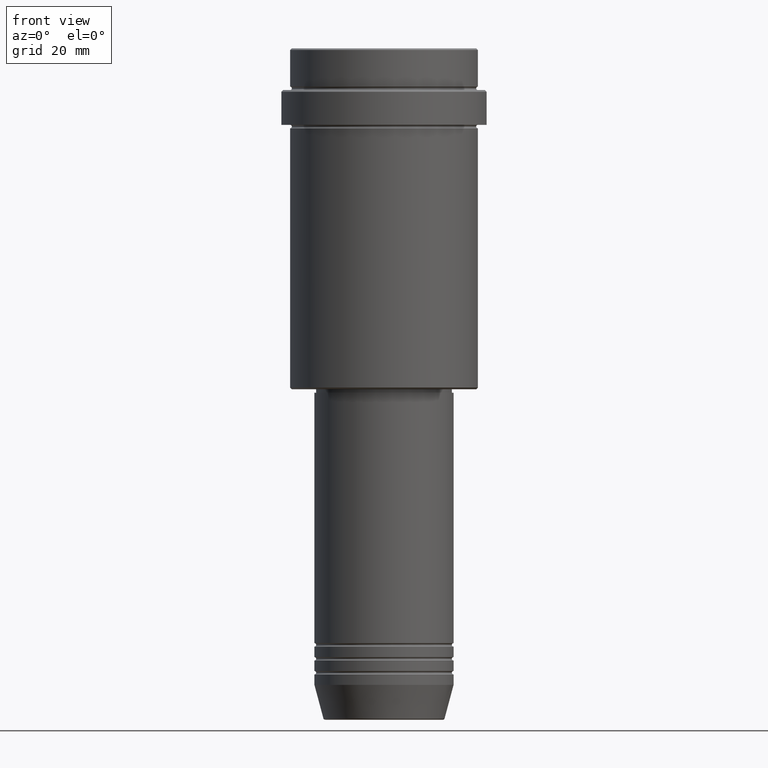
[diagram: clean part render]
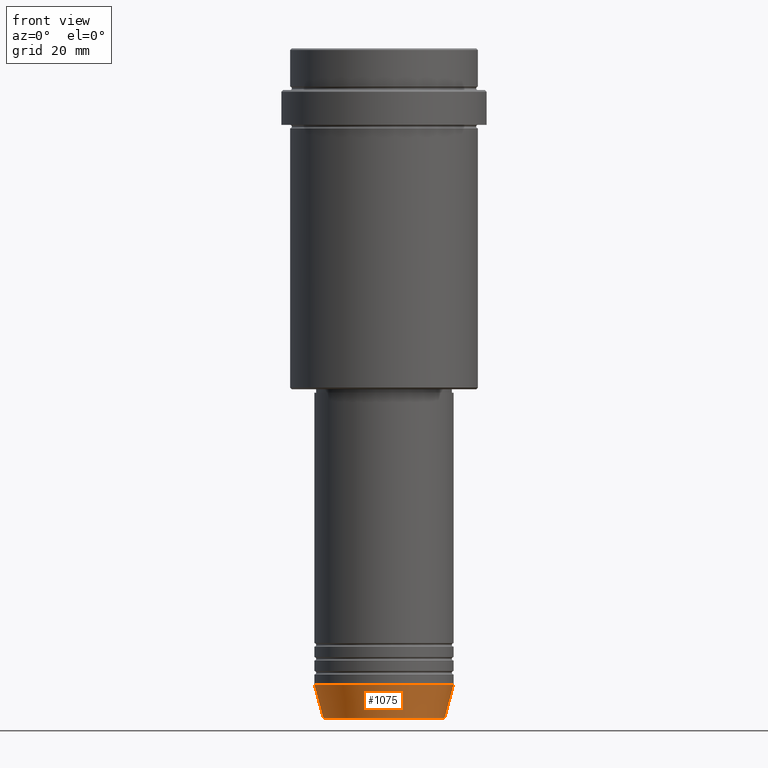
[diagram: same view with one face highlighted and labeled with its STEP entity id]
A machine part, front view. The second image highlights one B-rep face of the part: STEP entity #1075.
In plain terms, the highlighted conical surface has half-angle 15 deg.
Its self-contained STEP definition (entity closure, byte-faithful):
#86 = EDGE_CURVE ( 'NONE', #1271, #1262, #487, .T. ) ;
#92 = EDGE_CURVE ( 'NONE', #513, #1364, #540, .T. ) ;
#102 = DIRECTION ( 'NONE',  ( 1.000000000000000000, 0.000000000000000000, 0.000000000000000000 ) ) ;
#107 = DIRECTION ( 'NONE',  ( 1.000000000000000000, 0.000000000000000000, 0.000000000000000000 ) ) ;
#138 = LINE ( 'NONE', #1417, #659 ) ;
#184 = EDGE_LOOP ( 'NONE', ( #872, #594, #229, #1188 ) ) ;
#210 = AXIS2_PLACEMENT_3D ( 'NONE', #667, #215, #554 ) ;
#215 = DIRECTION ( 'NONE',  ( -0.000000000000000000, -0.000000000000000000, 1.000000000000000000 ) ) ;
#229 = ORIENTED_EDGE ( 'NONE', *, *, #1026, .T. ) ;
#293 = CARTESIAN_POINT ( 'NONE',  ( -20.00000000000000000, 2.449293598294706513E-15, -183.0000000000000000 ) ) ;
#354 = CONICAL_SURFACE ( 'NONE', #681, 20.00000000000000000, 0.2617993877991492413 ) ;
#375 = DIRECTION ( 'NONE',  ( 0.2588190451025205729, 0.000000000000000000, 0.9659258262890683122 ) ) ;
#462 = CARTESIAN_POINT ( 'NONE',  ( 0.000000000000000000, 0.000000000000000000, -183.0000000000000000 ) ) ;
#482 = FACE_OUTER_BOUND ( 'NONE', #184, .T. ) ;
#487 = CIRCLE ( 'NONE', #210, 17.41980749484381974 ) ;
#513 = VERTEX_POINT ( 'NONE', #1165 ) ;
#537 = DIRECTION ( 'NONE',  ( -0.000000000000000000, -0.000000000000000000, 1.000000000000000000 ) ) ;
#540 = CIRCLE ( 'NONE', #768, 20.00000000000000000 ) ;
#554 = DIRECTION ( 'NONE',  ( 1.000000000000000000, 0.000000000000000000, 0.000000000000000000 ) ) ;
#594 = ORIENTED_EDGE ( 'NONE', *, *, #86, .T. ) ;
#657 = LINE ( 'NONE', #293, #1201 ) ;
#659 = VECTOR ( 'NONE', #375, 1000.000000000000114 ) ;
#667 = CARTESIAN_POINT ( 'NONE',  ( 0.000000000000000000, 0.000000000000000000, -192.6294095225512422 ) ) ;
#681 = AXIS2_PLACEMENT_3D ( 'NONE', #462, #1308, #107 ) ;
#768 = AXIS2_PLACEMENT_3D ( 'NONE', #1082, #537, #102 ) ;
#846 = CARTESIAN_POINT ( 'NONE',  ( 17.41980749484381974, 0.000000000000000000, -192.6294095225512422 ) ) ;
#872 = ORIENTED_EDGE ( 'NONE', *, *, #880, .F. ) ;
#880 = EDGE_CURVE ( 'NONE', #1271, #513, #657, .T. ) ;
#1026 = EDGE_CURVE ( 'NONE', #1262, #1364, #138, .T. ) ;
#1075 = ADVANCED_FACE ( 'NONE', ( #482 ), #354, .T. ) ;
#1082 = CARTESIAN_POINT ( 'NONE',  ( 0.000000000000000000, 0.000000000000000000, -183.0000000000000000 ) ) ;
#1165 = CARTESIAN_POINT ( 'NONE',  ( -20.00000000000000000, 2.449293598294706513E-15, -183.0000000000000000 ) ) ;
#1188 = ORIENTED_EDGE ( 'NONE', *, *, #92, .F. ) ;
#1201 = VECTOR ( 'NONE', #1282, 1000.000000000000114 ) ;
#1262 = VERTEX_POINT ( 'NONE', #846 ) ;
#1271 = VERTEX_POINT ( 'NONE', #1280 ) ;
#1280 = CARTESIAN_POINT ( 'NONE',  ( -17.41980749484381974, 2.291302373663531126E-15, -192.6294095225512422 ) ) ;
#1282 = DIRECTION ( 'NONE',  ( -0.2588190451025205729, 3.169619151431761860E-17, 0.9659258262890683122 ) ) ;
#1308 = DIRECTION ( 'NONE',  ( -0.000000000000000000, -0.000000000000000000, 1.000000000000000000 ) ) ;
#1364 = VERTEX_POINT ( 'NONE', #1398 ) ;
#1398 = CARTESIAN_POINT ( 'NONE',  ( 20.00000000000000000, 0.000000000000000000, -183.0000000000000000 ) ) ;
#1417 = CARTESIAN_POINT ( 'NONE',  ( 20.00000000000000000, 0.000000000000000000, -183.0000000000000000 ) ) ;